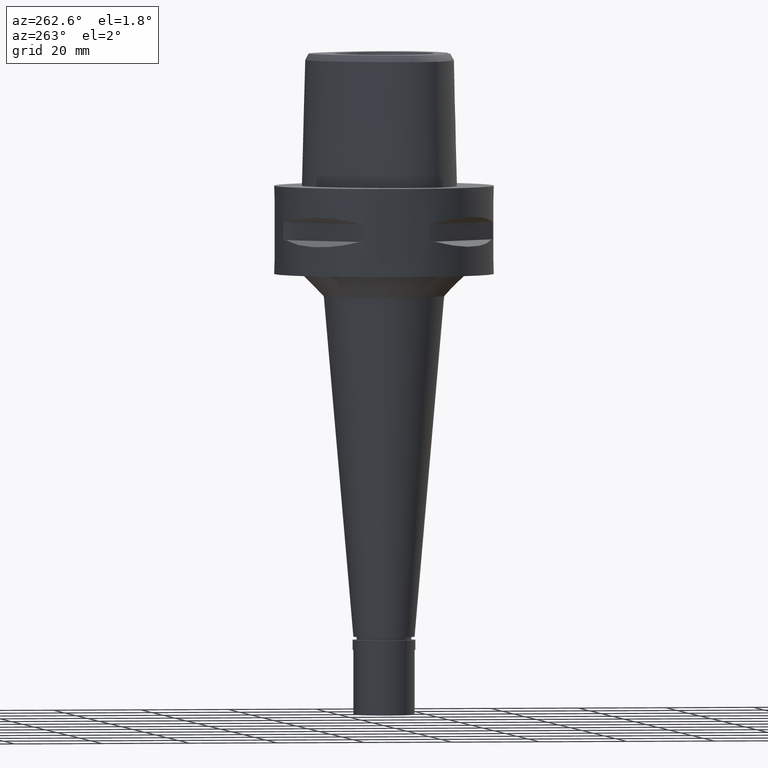
[diagram: clean part render]
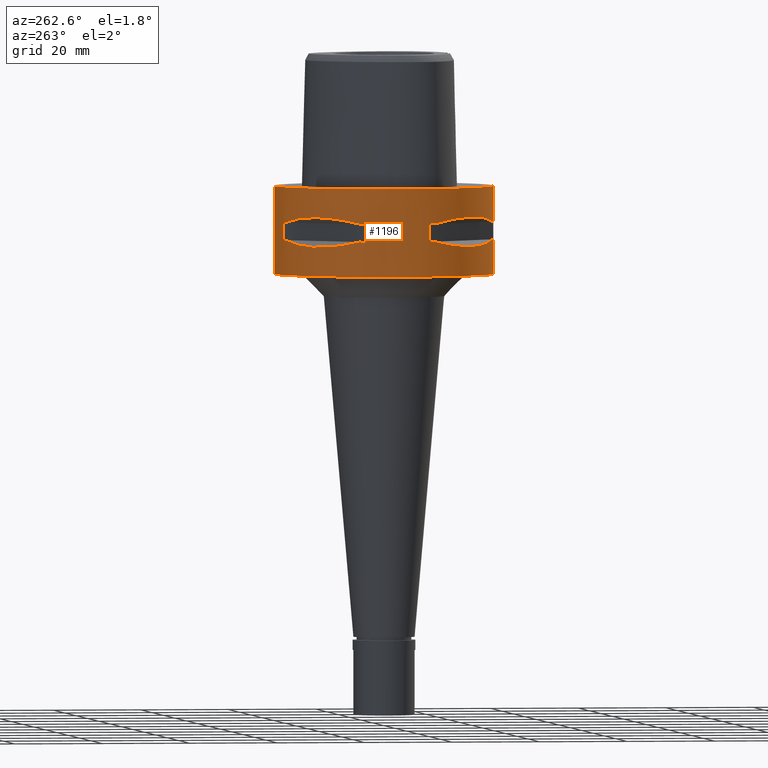
[diagram: same view with one face highlighted and labeled with its STEP entity id]
A machine part, auxiliary view. The second image highlights one B-rep face of the part: STEP entity #1196.
In plain terms, the highlighted cylindrical surface (partial cylindrical patch) has radius 25 mm, axis along (0, 0, -1).
Its self-contained STEP definition (entity closure, byte-faithful):
#56 = CIRCLE ( 'NONE', #2411, 24.99999999999999645 ) ;
#61 = DIRECTION ( 'NONE',  ( 0.0000000000000000000, 0.0000000000000000000, -1.000000000000000000 ) ) ;
#63 = AXIS2_PLACEMENT_3D ( 'NONE', #2273, #3689, #4429 ) ;
#79 = CARTESIAN_POINT ( 'NONE',  ( -11.99631184310672616, 22.00754773658299257, -7.175632472890621116 ) ) ;
#94 = EDGE_CURVE ( 'NONE', #3180, #4517, #447, .T. ) ;
#127 = CARTESIAN_POINT ( 'NONE',  ( -23.45715880140000209, 8.646484890751999330, -7.949999999998000000 ) ) ;
#155 = EDGE_CURVE ( 'NONE', #4419, #3645, #864, .T. ) ;
#204 = CARTESIAN_POINT ( 'NONE',  ( -23.45715880140000209, -8.646484890751999330, -7.949999999998000000 ) ) ;
#210 = CARTESIAN_POINT ( 'NONE',  ( -21.09754014382098930, -13.41274673326371136, -13.03250796600744721 ) ) ;
#239 = CARTESIAN_POINT ( 'NONE',  ( -21.82791133048418786, -12.20403021317722292, -12.83722430138600323 ) ) ;
#274 = ORIENTED_EDGE ( 'NONE', *, *, #3176, .F. ) ;
#362 = ORIENTED_EDGE ( 'NONE', *, *, #1105, .F. ) ;
#364 = CIRCLE ( 'NONE', #4003, 24.99999999999999645 ) ;
#371 = CARTESIAN_POINT ( 'NONE',  ( -11.99636231264038244, -22.00752022557066567, -7.175618606701942959 ) ) ;
#446 = CARTESIAN_POINT ( 'NONE',  ( -16.42437865150965948, 18.93096040781773581, -6.622505547251375191 ) ) ;
#447 = B_SPLINE_CURVE_WITH_KNOTS ( 'NONE', 3,
 ( #204, #2762, #3183, #4632, #1339, #2817, #2619, #371, #1432, #2251 ),
 .UNSPECIFIED., .F., .F.,
 ( 4, 2, 2, 2, 4 ),
 ( 0.0000000000000000000, 0.2500000000000000000, 0.5000000000000000000, 0.7500000000000000000, 1.000000000000000000 ),
 .UNSPECIFIED. ) ;
#460 = VERTEX_POINT ( 'NONE', #588 ) ;
#476 = VERTEX_POINT ( 'NONE', #1778 ) ;
#491 = CARTESIAN_POINT ( 'NONE',  ( -20.06074199765223653, 15.02698525049762956, -6.733118915115382741 ) ) ;
#503 = ORIENTED_EDGE ( 'NONE', *, *, #3905, .T. ) ;
#516 = EDGE_CURVE ( 'NONE', #460, #4242, #3290, .T. ) ;
#520 = EDGE_CURVE ( 'NONE', #4517, #1779, #3807, .T. ) ;
#530 = VECTOR ( 'NONE', #3152, 1000.000000000000000 ) ;
#548 = DIRECTION ( 'NONE',  ( -0.9581110799190402094, 0.2863968549694120291, 0.0000000000000000000 ) ) ;
#575 = CARTESIAN_POINT ( 'NONE',  ( -8.646484890751999330, -23.45715880140000209, -12.05000000000000071 ) ) ;
#586 = DIRECTION ( 'NONE',  ( 0.0000000000000000000, 0.0000000000000000000, 1.000000000000000000 ) ) ;
#588 = CARTESIAN_POINT ( 'NONE',  ( -23.45715880140000209, -8.646484890756999775, -12.05000000000000071 ) ) ;
#611 = CARTESIAN_POINT ( 'NONE',  ( -13.55971422200804888, 21.00321793043550755, -13.05400030967368785 ) ) ;
#617 = EDGE_LOOP ( 'NONE', ( #3145, #4018, #683, #362, #1130, #274, #2266, #1676 ) ) ;
#654 = VERTEX_POINT ( 'NONE', #4299 ) ;
#659 = LINE ( 'NONE', #3576, #4259 ) ;
#662 = CARTESIAN_POINT ( 'NONE',  ( -21.99328990738197120, 12.03062603426555199, -12.83394786308387481 ) ) ;
#663 = CARTESIAN_POINT ( 'NONE',  ( -7.159921374230999724, -23.95277699797999915, -7.950000000000000178 ) ) ;
#683 = ORIENTED_EDGE ( 'NONE', *, *, #2202, .T. ) ;
#702 = ORIENTED_EDGE ( 'NONE', *, *, #3520, .T. ) ;
#709 = EDGE_CURVE ( 'NONE', #2430, #1779, #1312, .T. ) ;
#714 = LINE ( 'NONE', #1538, #3949 ) ;
#728 = EDGE_LOOP ( 'NONE', ( #2163, #4072, #2785, #3174, #2482, #4121, #702, #4011 ) ) ;
#748 = DIRECTION ( 'NONE',  ( 0.0000000000000000000, 0.0000000000000000000, 1.000000000000000000 ) ) ;
#781 = VECTOR ( 'NONE', #748, 1000.000000000000000 ) ;
#824 = AXIS2_PLACEMENT_3D ( 'NONE', #1654, #3056, #3801 ) ;
#848 = AXIS2_PLACEMENT_3D ( 'NONE', #2225, #61, #3381 ) ;
#850 = EDGE_CURVE ( 'NONE', #3569, #3987, #56, .T. ) ;
#864 = CIRCLE ( 'NONE', #3965, 25.00000000000000000 ) ;
#887 = CARTESIAN_POINT ( 'NONE',  ( -8.646484890751999330, 23.45715880140000209, -7.949999999998000000 ) ) ;
#918 = DIRECTION ( 'NONE',  ( 0.0000000000000000000, 0.0000000000000000000, -1.000000000000000000 ) ) ;
#935 = CARTESIAN_POINT ( 'NONE',  ( 0.0000000000000000000, 1.295676313497999978E-14, -7.950000000000000178 ) ) ;
#954 = CARTESIAN_POINT ( 'NONE',  ( -12.03062603421342125, -21.99328990740118428, -12.83394786307044555 ) ) ;
#960 = AXIS2_PLACEMENT_3D ( 'NONE', #935, #1000, #3235 ) ;
#967 = CARTESIAN_POINT ( 'NONE',  ( -20.56020460721917331, 14.22535762329778386, -13.14488865845300047 ) ) ;
#1000 = DIRECTION ( 'NONE',  ( 0.0000000000000000000, 0.0000000000000000000, 1.000000000000000000 ) ) ;
#1069 = CARTESIAN_POINT ( 'NONE',  ( -13.53433973752455621, 21.01958685664031989, -13.05032380590174235 ) ) ;
#1105 = EDGE_CURVE ( 'NONE', #1492, #3514, #4042, .T. ) ;
#1109 = EDGE_CURVE ( 'NONE', #1812, #476, #2331, .T. ) ;
#1111 = VECTOR ( 'NONE', #3052, 1000.000000000000000 ) ;
#1130 = ORIENTED_EDGE ( 'NONE', *, *, #4306, .T. ) ;
#1196 = ADVANCED_FACE ( 'NONE', ( #2248, #3364, #4472 ), #4384, .T. ) ;
#1255 = CARTESIAN_POINT ( 'NONE',  ( -21.01958685664054372, -13.53433973752400377, -13.05032380590162511 ) ) ;
#1275 = DIRECTION ( 'NONE',  ( 0.0000000000000000000, 0.0000000000000000000, 1.000000000000000000 ) ) ;
#1304 = EDGE_CURVE ( 'NONE', #2430, #1402, #1411, .T. ) ;
#1305 = CARTESIAN_POINT ( 'NONE',  ( 0.0000000000000000000, 1.295676313497999978E-14, -12.05000000000000071 ) ) ;
#1312 = LINE ( 'NONE', #2791, #530 ) ;
#1339 = CARTESIAN_POINT ( 'NONE',  ( -18.93096040781770029, -16.42437865150966303, -6.622505547251375191 ) ) ;
#1343 = CARTESIAN_POINT ( 'NONE',  ( -13.74471461761470792, -20.88268233906292437, -13.08031795579734791 ) ) ;
#1366 = CARTESIAN_POINT ( 'NONE',  ( -13.90573822667720982, -20.77616787493829875, -13.10257122103289262 ) ) ;
#1402 = VERTEX_POINT ( 'NONE', #1842 ) ;
#1404 = EDGE_CURVE ( 'NONE', #4419, #2549, #714, .T. ) ;
#1405 = CARTESIAN_POINT ( 'NONE',  ( -19.18226349636000805, 16.07509500021993887, -13.33749867752047358 ) ) ;
#1411 = CIRCLE ( 'NONE', #63, 24.99999999999999645 ) ;
#1432 = CARTESIAN_POINT ( 'NONE',  ( -10.36318218122702284, -22.82437128822293460, -7.507495686398388379 ) ) ;
#1448 = CARTESIAN_POINT ( 'NONE',  ( -18.30096971346383938, 17.05439749819285566, -13.37751056790111903 ) ) ;
#1490 = CARTESIAN_POINT ( 'NONE',  ( -23.95277699797999915, 7.159921374230999724, -12.05000000000000071 ) ) ;
#1492 = VERTEX_POINT ( 'NONE', #3018 ) ;
#1503 = CARTESIAN_POINT ( 'NONE',  ( -23.95277699797999915, -7.159921374230999724, -12.05000000000000071 ) ) ;
#1538 = CARTESIAN_POINT ( 'NONE',  ( 0.0000000000000000000, -25.00000000000000000, 0.0000000000000000000 ) ) ;
#1595 = CARTESIAN_POINT ( 'NONE',  ( -22.00752022557068699, 11.99636231264038422, -7.175618606701942959 ) ) ;
#1603 = CARTESIAN_POINT ( 'NONE',  ( -23.13678124605149833, -9.515641234297431694, -12.27403800212630891 ) ) ;
#1654 = CARTESIAN_POINT ( 'NONE',  ( 0.0000000000000000000, 1.295676313497999978E-14, -12.05000000000000071 ) ) ;
#1676 = ORIENTED_EDGE ( 'NONE', *, *, #1994, .T. ) ;
#1706 = CARTESIAN_POINT ( 'NONE',  ( 0.0000000000000000000, 25.00000000000000000, -20.00000000000000000 ) ) ;
#1718 = CARTESIAN_POINT ( 'NONE',  ( -13.41274673326554101, 21.09754014382029297, -13.03250796600789663 ) ) ;
#1724 = AXIS2_PLACEMENT_3D ( 'NONE', #3187, #918, #548 ) ;
#1748 = DIRECTION ( 'NONE',  ( -0.9382863520558295534, 0.3458593956303108730, 0.0000000000000000000 ) ) ;
#1763 = CARTESIAN_POINT ( 'NONE',  ( -23.45715880140000209, 8.646484890751999330, -7.949999999998000000 ) ) ;
#1778 = CARTESIAN_POINT ( 'NONE',  ( -23.95277699797999915, 7.159921374230999724, -7.950000000000000178 ) ) ;
#1779 = VERTEX_POINT ( 'NONE', #663 ) ;
#1801 = CARTESIAN_POINT ( 'NONE',  ( -20.92801700160071476, 13.67544437571354266, -13.07054629644097687 ) ) ;
#1812 = VERTEX_POINT ( 'NONE', #1763 ) ;
#1820 = EDGE_CURVE ( 'NONE', #460, #1402, #3523, .T. ) ;
#1826 = DIRECTION ( 'NONE',  ( 0.0000000000000000000, 0.0000000000000000000, -1.000000000000000000 ) ) ;
#1832 = CARTESIAN_POINT ( 'NONE',  ( -7.159921374230999724, 23.95277699797999915, -12.05000000000000071 ) ) ;
#1837 = VERTEX_POINT ( 'NONE', #1706 ) ;
#1842 = CARTESIAN_POINT ( 'NONE',  ( -8.646484890751999330, -23.45715880140000209, -12.05000000000000071 ) ) ;
#1870 = ORIENTED_EDGE ( 'NONE', *, *, #155, .T. ) ;
#1926 = CARTESIAN_POINT ( 'NONE',  ( 0.0000000000000000000, 1.295676313497999978E-14, -7.950000000000000178 ) ) ;
#1963 = EDGE_CURVE ( 'NONE', #2738, #4242, #3683, .T. ) ;
#1977 = CARTESIAN_POINT ( 'NONE',  ( -20.02826730454556170, -15.06560254766883666, -13.27075471794798744 ) ) ;
#1994 = EDGE_CURVE ( 'NONE', #3987, #1812, #4103, .T. ) ;
#2054 = CARTESIAN_POINT ( 'NONE',  ( -7.159921374235000080, -23.95277699797999915, -12.05000000000000071 ) ) ;
#2071 = EDGE_LOOP ( 'NONE', ( #2077, #3441, #1870, #503 ) ) ;
#2072 = DIRECTION ( 'NONE',  ( 0.0000000000000000000, 0.0000000000000000000, 1.000000000000000000 ) ) ;
#2077 = ORIENTED_EDGE ( 'NONE', *, *, #2252, .T. ) ;
#2097 = CARTESIAN_POINT ( 'NONE',  ( -13.67544437571023153, -20.92801700160370970, -13.07054629644085786 ) ) ;
#2124 = CARTESIAN_POINT ( 'NONE',  ( -10.38516041956038016, -22.81626994452193458, -12.49816953211165860 ) ) ;
#2157 = CARTESIAN_POINT ( 'NONE',  ( -16.43106916206558665, 18.92421359260760383, -13.37747608848198411 ) ) ;
#2163 = ORIENTED_EDGE ( 'NONE', *, *, #520, .T. ) ;
#2180 = CARTESIAN_POINT ( 'NONE',  ( -13.48572973711170953, 21.05082155772122832, -13.04323036965318039 ) ) ;
#2190 = DIRECTION ( 'NONE',  ( 0.0000000000000000000, 0.0000000000000000000, 1.000000000000000000 ) ) ;
#2202 = EDGE_CURVE ( 'NONE', #654, #3514, #3791, .T. ) ;
#2225 = CARTESIAN_POINT ( 'NONE',  ( 0.0000000000000000000, 1.295676313497999978E-14, 5.799999999999999822 ) ) ;
#2248 = FACE_OUTER_BOUND ( 'NONE', #2071, .T. ) ;
#2251 = CARTESIAN_POINT ( 'NONE',  ( -8.646484890751999330, -23.45715880140000209, -7.949999999998000000 ) ) ;
#2252 = EDGE_CURVE ( 'NONE', #1837, #2549, #4408, .T. ) ;
#2266 = ORIENTED_EDGE ( 'NONE', *, *, #850, .T. ) ;
#2273 = CARTESIAN_POINT ( 'NONE',  ( 0.0000000000000000000, 1.295676313497999978E-14, -12.05000000000000071 ) ) ;
#2289 = CARTESIAN_POINT ( 'NONE',  ( -15.02693924547208404, 20.06077645874986004, -6.733132781304060011 ) ) ;
#2330 = DIRECTION ( 'NONE',  ( 0.0000000000000000000, 0.0000000000000000000, -1.000000000000000000 ) ) ;
#2331 = CIRCLE ( 'NONE', #3790, 25.00000000000001066 ) ;
#2341 = CARTESIAN_POINT ( 'NONE',  ( -23.45715880140000209, -8.646484890756999775, -12.05000000000000071 ) ) ;
#2381 = CARTESIAN_POINT ( 'NONE',  ( 0.0000000000000000000, 25.00000000000000000, 0.0000000000000000000 ) ) ;
#2410 = DIRECTION ( 'NONE',  ( 0.0000000000000000000, 1.000000000000000000, 0.0000000000000000000 ) ) ;
#2411 = AXIS2_PLACEMENT_3D ( 'NONE', #2914, #2190, #4732 ) ;
#2430 = VERTEX_POINT ( 'NONE', #2054 ) ;
#2451 = CARTESIAN_POINT ( 'NONE',  ( -20.77616787492827655, 13.90573822668830140, -13.10257122103331362 ) ) ;
#2463 = CARTESIAN_POINT ( 'NONE',  ( -14.85488513037629943, -20.11654071403241417, -13.22076716108376360 ) ) ;
#2482 = ORIENTED_EDGE ( 'NONE', *, *, #516, .T. ) ;
#2489 = CARTESIAN_POINT ( 'NONE',  ( -21.00321793043546847, -13.55971422200801157, -13.05400030967367364 ) ) ;
#2494 = CARTESIAN_POINT ( 'NONE',  ( 0.0000000000000000000, -25.00000000000000000, -20.00000000000000000 ) ) ;
#2499 = CARTESIAN_POINT ( 'NONE',  ( -20.11654071400031540, 14.85488513041178749, -13.22076716108514027 ) ) ;
#2517 = CARTESIAN_POINT ( 'NONE',  ( -7.159921374235000080, 23.95277699797999915, -7.950000000000000178 ) ) ;
#2549 = VERTEX_POINT ( 'NONE', #2494 ) ;
#2619 = CARTESIAN_POINT ( 'NONE',  ( -15.02698525049763489, -20.06074199765220811, -6.733118915115382741 ) ) ;
#2649 = CARTESIAN_POINT ( 'NONE',  ( -22.82437128822294525, 10.36318218122702106, -7.507495686398388379 ) ) ;
#2695 = CARTESIAN_POINT ( 'NONE',  ( -21.05082155772163333, -13.48572973711064193, -13.04323036965292637 ) ) ;
#2725 = CARTESIAN_POINT ( 'NONE',  ( -17.05439749816580886, -18.30096971348830692, -13.37751056790007809 ) ) ;
#2738 = VERTEX_POINT ( 'NONE', #3246 ) ;
#2762 = CARTESIAN_POINT ( 'NONE',  ( -22.82438450745536329, -10.36314631860329349, -7.507504930524173226 ) ) ;
#2779 = DIRECTION ( 'NONE',  ( 0.0000000000000000000, 0.0000000000000000000, -1.000000000000000000 ) ) ;
#2785 = ORIENTED_EDGE ( 'NONE', *, *, #1304, .T. ) ;
#2791 = CARTESIAN_POINT ( 'NONE',  ( -7.159921374230999724, -23.95277699797999915, -12.05000000000000071 ) ) ;
#2801 = AXIS2_PLACEMENT_3D ( 'NONE', #3515, #2072, #2410 ) ;
#2817 = CARTESIAN_POINT ( 'NONE',  ( -16.42437865150966303, -18.93096040781770384, -6.622496303225266168 ) ) ;
#2824 = CARTESIAN_POINT ( 'NONE',  ( -13.60713573003076249, -20.97251445226584110, -13.06082541678113174 ) ) ;
#2831 = CARTESIAN_POINT ( 'NONE',  ( -23.45715880140000209, -8.646484890751999330, -7.949999999998000000 ) ) ;
#2856 = CARTESIAN_POINT ( 'NONE',  ( -9.515641234306031038, 23.13678124604833286, -12.27403800212850093 ) ) ;
#2881 = CARTESIAN_POINT ( 'NONE',  ( -12.89853354822446718, 21.41803043592210543, -12.95342092614171570 ) ) ;
#2905 = CARTESIAN_POINT ( 'NONE',  ( -8.646484890756999775, 23.45715880140000209, -12.05000000000000071 ) ) ;
#2914 = CARTESIAN_POINT ( 'NONE',  ( 0.0000000000000000000, 1.295676313497999978E-14, -7.950000000000000178 ) ) ;
#2959 = EDGE_CURVE ( 'NONE', #654, #476, #4065, .T. ) ;
#3018 = CARTESIAN_POINT ( 'NONE',  ( -8.646484890756999775, 23.45715880140000209, -12.05000000000000071 ) ) ;
#3031 = CARTESIAN_POINT ( 'NONE',  ( -8.646484890751999330, 23.45715880140000209, -7.949999999998000000 ) ) ;
#3052 = DIRECTION ( 'NONE',  ( 0.0000000000000000000, 0.0000000000000000000, -1.000000000000000000 ) ) ;
#3056 = DIRECTION ( 'NONE',  ( 0.0000000000000000000, 0.0000000000000000000, -1.000000000000000000 ) ) ;
#3059 = CARTESIAN_POINT ( 'NONE',  ( -22.58788056562029922, -10.78455809745187111, -12.56798337782941744 ) ) ;
#3076 = CIRCLE ( 'NONE', #824, 25.00000000000001066 ) ;
#3083 = CARTESIAN_POINT ( 'NONE',  ( -18.92421359266165126, -16.43106916201666934, -13.37747608848409264 ) ) ;
#3145 = ORIENTED_EDGE ( 'NONE', *, *, #1109, .T. ) ;
#3152 = DIRECTION ( 'NONE',  ( 0.0000000000000000000, 0.0000000000000000000, 1.000000000000000000 ) ) ;
#3174 = ORIENTED_EDGE ( 'NONE', *, *, #1820, .F. ) ;
#3176 = EDGE_CURVE ( 'NONE', #3569, #4251, #659, .T. ) ;
#3180 = VERTEX_POINT ( 'NONE', #2831 ) ;
#3183 = CARTESIAN_POINT ( 'NONE',  ( -22.00754773658296770, -11.99631184310673682, -7.175632472890621116 ) ) ;
#3187 = CARTESIAN_POINT ( 'NONE',  ( 0.0000000000000000000, 1.295676313497999978E-14, -12.05000000000000071 ) ) ;
#3205 = CARTESIAN_POINT ( 'NONE',  ( -10.78455809746692928, 22.58788056561475344, -12.56798337783328634 ) ) ;
#3216 = AXIS2_PLACEMENT_3D ( 'NONE', #1305, #2779, #4238 ) ;
#3235 = DIRECTION ( 'NONE',  ( -0.3458593956303108730, -0.9382863520558295534, 0.0000000000000000000 ) ) ;
#3246 = CARTESIAN_POINT ( 'NONE',  ( -23.95277699797999915, -7.159921374235000080, -7.950000000000000178 ) ) ;
#3248 = VECTOR ( 'NONE', #2330, 1000.000000000000000 ) ;
#3278 = CARTESIAN_POINT ( 'NONE',  ( 0.0000000000000000000, 1.295676313497999978E-14, -7.950000000000000178 ) ) ;
#3290 = CIRCLE ( 'NONE', #3216, 25.00000000000001066 ) ;
#3321 = DIRECTION ( 'NONE',  ( 0.0000000000000000000, 0.0000000000000000000, -1.000000000000000000 ) ) ;
#3364 = FACE_BOUND ( 'NONE', #617, .T. ) ;
#3366 = DIRECTION ( 'NONE',  ( 0.0000000000000000000, -1.000000000000000000, 0.0000000000000000000 ) ) ;
#3381 = DIRECTION ( 'NONE',  ( 0.0000000000000000000, -1.000000000000000000, 0.0000000000000000000 ) ) ;
#3441 = ORIENTED_EDGE ( 'NONE', *, *, #1404, .F. ) ;
#3514 = VERTEX_POINT ( 'NONE', #4558 ) ;
#3515 = CARTESIAN_POINT ( 'NONE',  ( 0.0000000000000000000, 1.295676313497999978E-14, -20.00000000000000000 ) ) ;
#3520 = EDGE_CURVE ( 'NONE', #2738, #3180, #364, .T. ) ;
#3523 = B_SPLINE_CURVE_WITH_KNOTS ( 'NONE', 3,
 ( #2341, #1603, #3059, #239, #3543, #3805, #210, #2695, #1255, #2489, #1977, #3083, #2725, #4638, #2463, #4663, #1366, #1343, #2097, #4157, #2824, #954, #2124, #575 ),
 .UNSPECIFIED., .F., .F.,
 ( 4, 1, 1, 1, 1, 1, 2, 2, 2, 1, 1, 1, 1, 1, 2, 2, 4 ),
 ( 0.0000000000000000000, 0.1249999999999980294, 0.1874999999999968636, 0.2187499999999962530, 0.2343749999999959754, 0.2421874999999957812, 0.2460937499999955869, 0.2499999999999953926, 0.5000000000000005551, 0.6250000000000031086, 0.6875000000000044409, 0.7187500000000051070, 0.7343750000000054401, 0.7421875000000055511, 0.7460937500000055511, 0.7500000000000055511, 1.000000000000000000 ),
 .UNSPECIFIED. ) ;
#3543 = CARTESIAN_POINT ( 'NONE',  ( -21.41803043592453548, -12.89853354821786446, -12.95342092614003171 ) ) ;
#3569 = VERTEX_POINT ( 'NONE', #2517 ) ;
#3576 = CARTESIAN_POINT ( 'NONE',  ( -7.159921374230999724, 23.95277699797999915, -7.950000000000000178 ) ) ;
#3625 = DIRECTION ( 'NONE',  ( 0.0000000000000000000, 0.0000000000000000000, -1.000000000000000000 ) ) ;
#3645 = VERTEX_POINT ( 'NONE', #3976 ) ;
#3651 = CARTESIAN_POINT ( 'NONE',  ( -12.20403021318853476, 21.82791133048002763, -12.83722430138890225 ) ) ;
#3683 = LINE ( 'NONE', #4422, #1111 ) ;
#3689 = DIRECTION ( 'NONE',  ( 0.0000000000000000000, 0.0000000000000000000, -1.000000000000000000 ) ) ;
#3743 = LINE ( 'NONE', #2381, #3248 ) ;
#3770 = CARTESIAN_POINT ( 'NONE',  ( -10.36314631860328284, 22.82438450745538461, -7.507504930524173226 ) ) ;
#3790 = AXIS2_PLACEMENT_3D ( 'NONE', #3278, #586, #1748 ) ;
#3791 = CIRCLE ( 'NONE', #1724, 24.99999999999999645 ) ;
#3801 = DIRECTION ( 'NONE',  ( -0.3458593956303108730, 0.9382863520558295534, 0.0000000000000000000 ) ) ;
#3805 = CARTESIAN_POINT ( 'NONE',  ( -21.20561591939681989, -13.24197703503267753, -13.00691327926098140 ) ) ;
#3807 = CIRCLE ( 'NONE', #960, 25.00000000000001066 ) ;
#3905 = EDGE_CURVE ( 'NONE', #3645, #1837, #3743, .T. ) ;
#3914 = CARTESIAN_POINT ( 'NONE',  ( -22.81626994450270374, 10.38516041961251268, -12.49816953212508608 ) ) ;
#3949 = VECTOR ( 'NONE', #3321, 1000.000000000000000 ) ;
#3965 = AXIS2_PLACEMENT_3D ( 'NONE', #4009, #1826, #3366 ) ;
#3976 = CARTESIAN_POINT ( 'NONE',  ( 0.0000000000000000000, 25.00000000000000000, 0.0000000000000000000 ) ) ;
#3983 = CARTESIAN_POINT ( 'NONE',  ( -20.95817024473767987, 13.62920640916783555, -13.06397973560677883 ) ) ;
#3987 = VERTEX_POINT ( 'NONE', #887 ) ;
#4003 = AXIS2_PLACEMENT_3D ( 'NONE', #1926, #1275, #4201 ) ;
#4009 = CARTESIAN_POINT ( 'NONE',  ( 0.0000000000000000000, 1.295676313497999978E-14, 0.0000000000000000000 ) ) ;
#4011 = ORIENTED_EDGE ( 'NONE', *, *, #94, .T. ) ;
#4018 = ORIENTED_EDGE ( 'NONE', *, *, #2959, .F. ) ;
#4042 = B_SPLINE_CURVE_WITH_KNOTS ( 'NONE', 3,
 ( #2905, #2856, #3205, #3651, #2881, #4745, #1718, #2180, #1069, #611, #4265, #2157, #1448, #1405, #2499, #967, #2451, #4338, #1801, #3983, #4651, #662, #3914, #4725 ),
 .UNSPECIFIED., .F., .F.,
 ( 4, 1, 1, 1, 1, 1, 2, 2, 2, 1, 1, 1, 1, 1, 2, 2, 4 ),
 ( 0.0000000000000000000, 0.1250000000000042744, 0.1875000000000064115, 0.2187500000000075218, 0.2343750000000079659, 0.2421875000000081601, 0.2460937500000082989, 0.2500000000000084377, 0.5000000000000065503, 0.6250000000000055511, 0.6875000000000051070, 0.7187500000000047740, 0.7343750000000045519, 0.7421875000000042188, 0.7460937500000041078, 0.7500000000000039968, 1.000000000000000000 ),
 .UNSPECIFIED. ) ;
#4055 = CARTESIAN_POINT ( 'NONE',  ( -8.646484890751999330, -23.45715880140000209, -7.949999999998000000 ) ) ;
#4065 = LINE ( 'NONE', #1490, #781 ) ;
#4072 = ORIENTED_EDGE ( 'NONE', *, *, #709, .F. ) ;
#4096 = CARTESIAN_POINT ( 'NONE',  ( 0.0000000000000000000, -25.00000000000000000, 0.0000000000000000000 ) ) ;
#4103 = B_SPLINE_CURVE_WITH_KNOTS ( 'NONE', 3,
 ( #3031, #3770, #79, #2289, #446, #4122, #491, #1595, #2649, #127 ),
 .UNSPECIFIED., .F., .F.,
 ( 4, 2, 2, 2, 4 ),
 ( 0.0000000000000000000, 0.2500000000000000000, 0.5000000000000000000, 0.7500000000000000000, 1.000000000000000000 ),
 .UNSPECIFIED. ) ;
#4121 = ORIENTED_EDGE ( 'NONE', *, *, #1963, .F. ) ;
#4122 = CARTESIAN_POINT ( 'NONE',  ( -18.93096040781772516, 16.42437865150967014, -6.622496303225266168 ) ) ;
#4157 = CARTESIAN_POINT ( 'NONE',  ( -13.62920640916616577, -20.95817024473919687, -13.06397973560672554 ) ) ;
#4201 = DIRECTION ( 'NONE',  ( -0.9581110799190402094, -0.2863968549694120291, 0.0000000000000000000 ) ) ;
#4238 = DIRECTION ( 'NONE',  ( -0.9382863520558295534, -0.3458593956303108730, 0.0000000000000000000 ) ) ;
#4242 = VERTEX_POINT ( 'NONE', #1503 ) ;
#4251 = VERTEX_POINT ( 'NONE', #1832 ) ;
#4259 = VECTOR ( 'NONE', #3625, 1000.000000000000000 ) ;
#4265 = CARTESIAN_POINT ( 'NONE',  ( -15.06560254766712248, 20.02826730454206228, -13.27075471794584693 ) ) ;
#4299 = CARTESIAN_POINT ( 'NONE',  ( -23.95277699797999915, 7.159921374235000080, -12.05000000000000071 ) ) ;
#4306 = EDGE_CURVE ( 'NONE', #1492, #4251, #3076, .T. ) ;
#4338 = CARTESIAN_POINT ( 'NONE',  ( -20.88268233905774807, 13.74471461762043312, -13.08031795579756640 ) ) ;
#4384 = CYLINDRICAL_SURFACE ( 'NONE', #848, 25.00000000000000000 ) ;
#4408 = CIRCLE ( 'NONE', #2801, 25.00000000000000000 ) ;
#4419 = VERTEX_POINT ( 'NONE', #4096 ) ;
#4422 = CARTESIAN_POINT ( 'NONE',  ( -23.95277699797999915, -7.159921374230999724, -7.950000000000000178 ) ) ;
#4429 = DIRECTION ( 'NONE',  ( -0.2863968549694120291, -0.9581110799190402094, 0.0000000000000000000 ) ) ;
#4472 = FACE_BOUND ( 'NONE', #728, .T. ) ;
#4517 = VERTEX_POINT ( 'NONE', #4055 ) ;
#4558 = CARTESIAN_POINT ( 'NONE',  ( -23.45715880140000209, 8.646484890751999330, -12.05000000000000071 ) ) ;
#4632 = CARTESIAN_POINT ( 'NONE',  ( -20.06077645874982807, -15.02693924547208226, -6.733132781304060011 ) ) ;
#4638 = CARTESIAN_POINT ( 'NONE',  ( -16.07509500017260251, -19.18226349640280048, -13.33749867751863327 ) ) ;
#4651 = CARTESIAN_POINT ( 'NONE',  ( -20.97251445226615019, 13.60713573002994181, -13.06082541678091324 ) ) ;
#4663 = CARTESIAN_POINT ( 'NONE',  ( -14.22535762327708397, -20.56020460723788901, -13.14488865845220289 ) ) ;
#4725 = CARTESIAN_POINT ( 'NONE',  ( -23.45715880140000209, 8.646484890751999330, -12.05000000000000071 ) ) ;
#4732 = DIRECTION ( 'NONE',  ( -0.2863968549694120291, 0.9581110799190402094, 0.0000000000000000000 ) ) ;
#4745 = CARTESIAN_POINT ( 'NONE',  ( -13.24197703503622137, 21.20561591939551249, -13.00691327926188201 ) ) ;